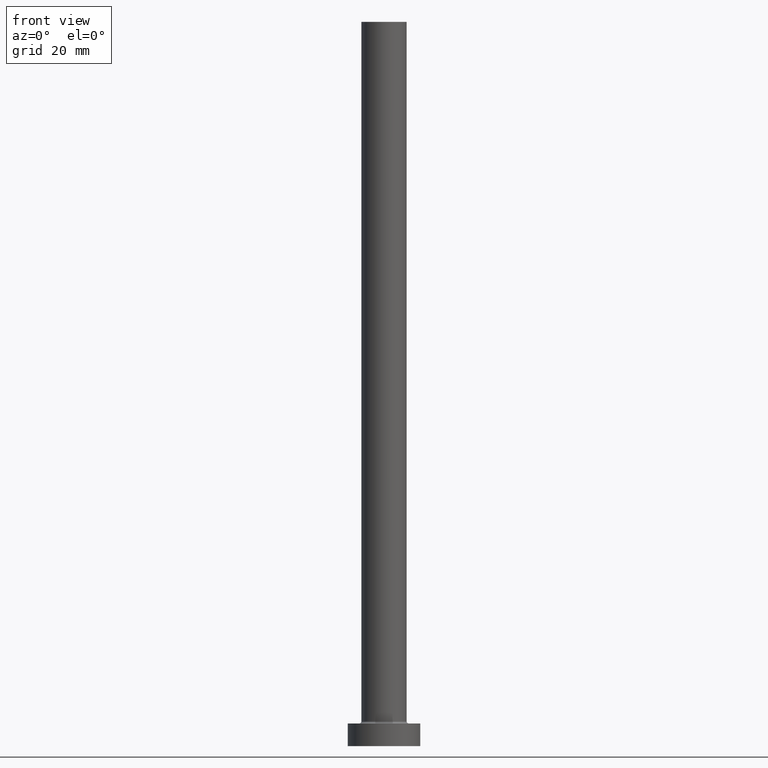
[diagram: clean part render]
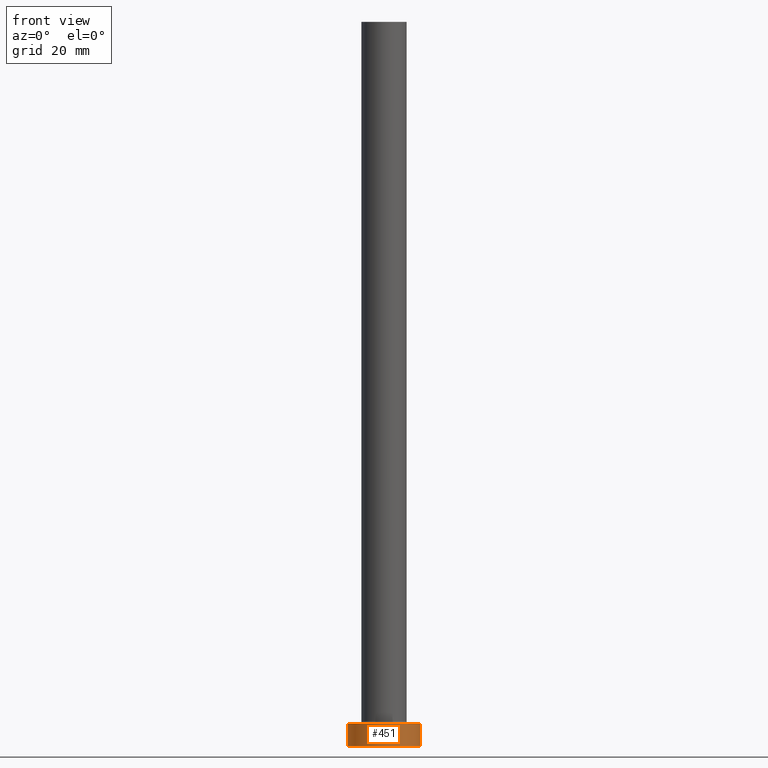
[diagram: same view with one face highlighted and labeled with its STEP entity id]
A machine part, front view. The second image highlights one B-rep face of the part: STEP entity #451.
In plain terms, the highlighted cylindrical surface (edge-blend (fillet) strip) has radius 8 mm, axis along (-0, -0, -1).
Its self-contained STEP definition (entity closure, byte-faithful):
#7 = VERTEX_POINT ( 'NONE', #459 ) ;
#12 = VERTEX_POINT ( 'NONE', #312 ) ;
#30 = VECTOR ( 'NONE', #336, 1000.000000000000000 ) ;
#37 = LINE ( 'NONE', #141, #155 ) ;
#49 = CYLINDRICAL_SURFACE ( 'NONE', #235, 8.000000000000000000 ) ;
#50 = DIRECTION ( 'NONE',  ( 1.000000000000000000, 0.000000000000000000, 0.000000000000000000 ) ) ;
#56 = VERTEX_POINT ( 'NONE', #222 ) ;
#69 = ORIENTED_EDGE ( 'NONE', *, *, #292, .F. ) ;
#72 = EDGE_CURVE ( 'NONE', #7, #56, #333, .T. ) ;
#86 = DIRECTION ( 'NONE',  ( -1.000000000000000000, 0.000000000000000000, 0.000000000000000000 ) ) ;
#109 = EDGE_CURVE ( 'NONE', #7, #12, #438, .T. ) ;
#129 = CARTESIAN_POINT ( 'NONE',  ( 0.000000000000000000, 0.000000000000000000, 0.000000000000000000 ) ) ;
#141 = CARTESIAN_POINT ( 'NONE',  ( 8.000000000000000000, 9.797174393178825657E-16, 5.000000000000000000 ) ) ;
#155 = VECTOR ( 'NONE', #207, 1000.000000000000000 ) ;
#207 = DIRECTION ( 'NONE',  ( -0.000000000000000000, -0.000000000000000000, -1.000000000000000000 ) ) ;
#219 = DIRECTION ( 'NONE',  ( 0.000000000000000000, 0.000000000000000000, 1.000000000000000000 ) ) ;
#222 = CARTESIAN_POINT ( 'NONE',  ( -8.000000000000000000, 0.000000000000000000, 0.000000000000000000 ) ) ;
#235 = AXIS2_PLACEMENT_3D ( 'NONE', #286, #426, #86 ) ;
#238 = DIRECTION ( 'NONE',  ( 0.000000000000000000, 0.000000000000000000, 1.000000000000000000 ) ) ;
#239 = AXIS2_PLACEMENT_3D ( 'NONE', #293, #219, #50 ) ;
#240 = VERTEX_POINT ( 'NONE', #404 ) ;
#256 = EDGE_CURVE ( 'NONE', #56, #240, #379, .T. ) ;
#263 = ORIENTED_EDGE ( 'NONE', *, *, #109, .F. ) ;
#271 = ORIENTED_EDGE ( 'NONE', *, *, #256, .T. ) ;
#286 = CARTESIAN_POINT ( 'NONE',  ( 0.000000000000000000, 0.000000000000000000, 5.000000000000000000 ) ) ;
#292 = EDGE_CURVE ( 'NONE', #12, #240, #37, .T. ) ;
#293 = CARTESIAN_POINT ( 'NONE',  ( 0.000000000000000000, 0.000000000000000000, 5.000000000000000000 ) ) ;
#312 = CARTESIAN_POINT ( 'NONE',  ( 8.000000000000000000, 9.797174393178825657E-16, 5.000000000000000000 ) ) ;
#333 = LINE ( 'NONE', #430, #30 ) ;
#336 = DIRECTION ( 'NONE',  ( -0.000000000000000000, -0.000000000000000000, -1.000000000000000000 ) ) ;
#358 = DIRECTION ( 'NONE',  ( 1.000000000000000000, 0.000000000000000000, 0.000000000000000000 ) ) ;
#379 = CIRCLE ( 'NONE', #384, 8.000000000000000000 ) ;
#384 = AXIS2_PLACEMENT_3D ( 'NONE', #129, #238, #358 ) ;
#386 = EDGE_LOOP ( 'NONE', ( #69, #263, #412, #271 ) ) ;
#391 = FACE_OUTER_BOUND ( 'NONE', #386, .T. ) ;
#404 = CARTESIAN_POINT ( 'NONE',  ( 8.000000000000000000, 9.797174393178825657E-16, 0.000000000000000000 ) ) ;
#412 = ORIENTED_EDGE ( 'NONE', *, *, #72, .T. ) ;
#426 = DIRECTION ( 'NONE',  ( -0.000000000000000000, -0.000000000000000000, -1.000000000000000000 ) ) ;
#430 = CARTESIAN_POINT ( 'NONE',  ( -8.000000000000000000, 0.000000000000000000, 5.000000000000000000 ) ) ;
#438 = CIRCLE ( 'NONE', #239, 8.000000000000000000 ) ;
#451 = ADVANCED_FACE ( 'NONE', ( #391 ), #49, .T. ) ;
#459 = CARTESIAN_POINT ( 'NONE',  ( -8.000000000000000000, 0.000000000000000000, 5.000000000000000000 ) ) ;